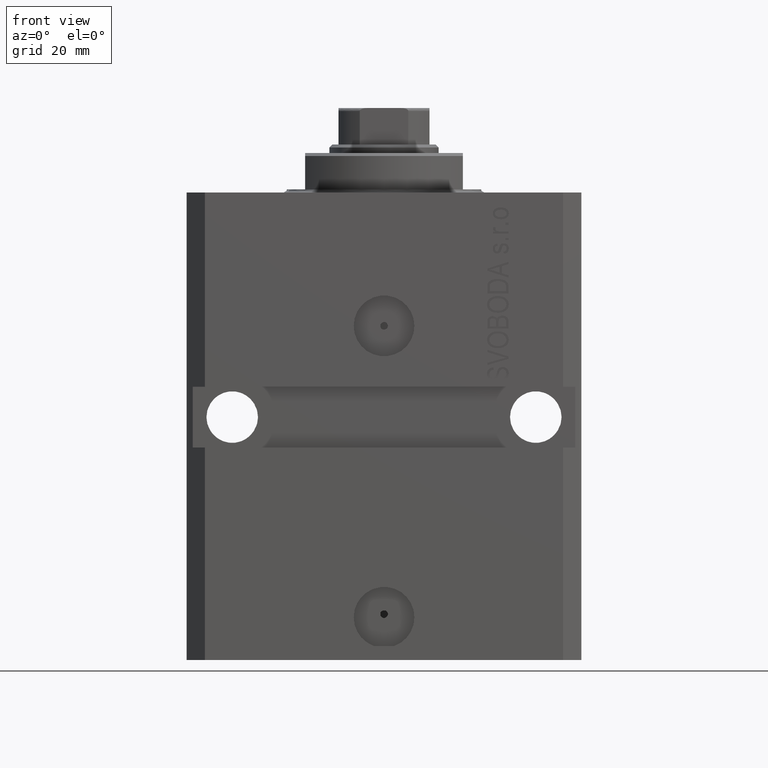
[diagram: clean part render]
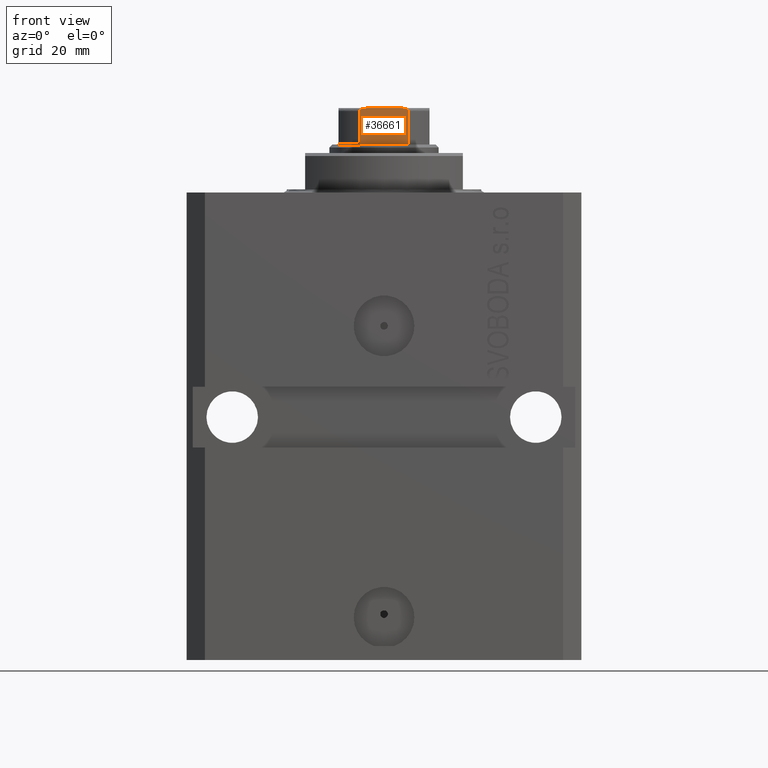
[diagram: same view with one face highlighted and labeled with its STEP entity id]
A machine part, front view. The second image highlights one B-rep face of the part: STEP entity #36661.
In plain terms, the highlighted planar face has unit normal (-0, 1, 0).
Its self-contained STEP definition (entity closure, byte-faithful):
#384 = CARTESIAN_POINT ( 'NONE',  ( -3.710689790367166285, -7.500000000000003553, 83.84812118173427109 ) ) ;
#1162 = LINE ( 'NONE', #28422, #32549 ) ;
#2265 = CARTESIAN_POINT ( 'NONE',  ( 4.000000000000000888, -7.500000000000000000, 83.49999999999997158 ) ) ;
#2795 = VECTOR ( 'NONE', #5708, 1000.000000000000000 ) ;
#4787 = DIRECTION ( 'NONE',  ( 1.000000000000000000, 5.782411586589358625E-17, 0.000000000000000000 ) ) ;
#5165 = EDGE_LOOP ( 'NONE', ( #26798, #14667, #33569, #21435, #6421, #19432 ) ) ;
#5605 = CARTESIAN_POINT ( 'NONE',  ( -2.783882181415010315, -7.500000000000000888, 84.00000000000000000 ) ) ;
#5708 = DIRECTION ( 'NONE',  ( -0.000000000000000000, -0.000000000000000000, 1.000000000000000000 ) ) ;
#6421 = ORIENTED_EDGE ( 'NONE', *, *, #21926, .T. ) ;
#8160 = VERTEX_POINT ( 'NONE', #23329 ) ;
#8560 = VERTEX_POINT ( 'NONE', #10737 ) ;
#8661 = LINE ( 'NONE', #32987, #2795 ) ;
#10586 = AXIS2_PLACEMENT_3D ( 'NONE', #30747, #27103, #13027 ) ;
#10737 = CARTESIAN_POINT ( 'NONE',  ( 2.783882181415008539, -7.500000000000000888, 84.00000000000000000 ) ) ;
#10833 = CARTESIAN_POINT ( 'NONE',  ( -3.975735230428955713, -7.500000000000000888, 83.61773041319776212 ) ) ;
#12227 = CARTESIAN_POINT ( 'NONE',  ( 3.858352854028576751, -7.500000000000001776, 83.75117951603156996 ) ) ;
#12564 = EDGE_CURVE ( 'NONE', #17273, #8560, #41448, .T. ) ;
#12680 = LINE ( 'NONE', #22688, #25627 ) ;
#13027 = DIRECTION ( 'NONE',  ( -1.000000000000000000, -5.782411586589358625E-17, 0.000000000000000000 ) ) ;
#13176 = CARTESIAN_POINT ( 'NONE',  ( -7.499999999999997335, -7.500000000000000888, 78.00000000000000000 ) ) ;
#14232 = CARTESIAN_POINT ( 'NONE',  ( -3.857502111569855785, -7.500000000000001776, 83.75173359969211617 ) ) ;
#14667 = ORIENTED_EDGE ( 'NONE', *, *, #23074, .T. ) ;
#15409 = CARTESIAN_POINT ( 'NONE',  ( 3.020011215871892585, -7.500000000000000888, 83.99999999999998579 ) ) ;
#16678 = VECTOR ( 'NONE', #30228, 1000.000000000000000 ) ;
#17094 = PLANE ( 'NONE',  #10586 ) ;
#17273 = VERTEX_POINT ( 'NONE', #2265 ) ;
#17685 = CARTESIAN_POINT ( 'NONE',  ( 4.000000000000000888, -7.500000000000000000, 77.99999999999998579 ) ) ;
#17782 = EDGE_CURVE ( 'NONE', #23168, #8560, #1162, .T. ) ;
#18125 = CARTESIAN_POINT ( 'NONE',  ( 2.783882181415008539, -7.500000000000000888, 84.00000000000000000 ) ) ;
#18825 = DIRECTION ( 'NONE',  ( -0.000000000000000000, -0.000000000000000000, 1.000000000000000000 ) ) ;
#19041 = CARTESIAN_POINT ( 'NONE',  ( 3.597188386589909470, -7.500000000000001776, 83.89052843393243108 ) ) ;
#19432 = ORIENTED_EDGE ( 'NONE', *, *, #12564, .T. ) ;
#21202 = B_SPLINE_CURVE_WITH_KNOTS ( 'NONE', 3,
 ( #39255, #29009, #36054, #28323, #384, #14232, #28099, #10833, #21272, #29926 ),
 .UNSPECIFIED., .F., .F.,
 ( 4, 2, 2, 2, 4 ),
 ( 4.336808689942017736E-19, 0.0007049202178654275690, 0.001057380326798146395, 0.001233610381264493936, 0.001409840435730841477 ),
 .UNSPECIFIED. ) ;
#21272 = CARTESIAN_POINT ( 'NONE',  ( -4.000000000000210498, -7.500000000000001776, 83.56034186205209835 ) ) ;
#21276 = VERTEX_POINT ( 'NONE', #17685 ) ;
#21435 = ORIENTED_EDGE ( 'NONE', *, *, #26327, .T. ) ;
#21926 = EDGE_CURVE ( 'NONE', #21276, #17273, #8661, .T. ) ;
#21987 = CARTESIAN_POINT ( 'NONE',  ( 3.904208668232345136, -7.500000000000000000, 83.71278134537496385 ) ) ;
#22688 = CARTESIAN_POINT ( 'NONE',  ( -4.000000000000000888, -7.500000000000000000, -0.001000000000001000089 ) ) ;
#23074 = EDGE_CURVE ( 'NONE', #23168, #8160, #21202, .T. ) ;
#23168 = VERTEX_POINT ( 'NONE', #5605 ) ;
#23188 = LINE ( 'NONE', #13176, #16678 ) ;
#23329 = CARTESIAN_POINT ( 'NONE',  ( -4.000000000000000888, -7.500000000000000000, 83.49999999999997158 ) ) ;
#23452 = CARTESIAN_POINT ( 'NONE',  ( 4.000000000000001776, -7.500000000000001776, 83.56026396800436373 ) ) ;
#24498 = CARTESIAN_POINT ( 'NONE',  ( -4.000000000000000888, -7.500000000000000000, 78.00000000000001421 ) ) ;
#25401 = CARTESIAN_POINT ( 'NONE',  ( 3.708875323752935937, -7.500000000000000888, 83.84930352055465619 ) ) ;
#25627 = VECTOR ( 'NONE', #18825, 1000.000000000000000 ) ;
#26327 = EDGE_CURVE ( 'NONE', #41081, #21276, #23188, .T. ) ;
#26798 = ORIENTED_EDGE ( 'NONE', *, *, #17782, .F. ) ;
#27103 = DIRECTION ( 'NONE',  ( -5.782411586589358625E-17, 1.000000000000000000, 0.000000000000000000 ) ) ;
#28099 = CARTESIAN_POINT ( 'NONE',  ( -3.904072061442365182, -7.500000000000002665, 83.71287056890807321 ) ) ;
#28323 = CARTESIAN_POINT ( 'NONE',  ( -3.598393151503795906, -7.500000000000000888, 83.89012191927410811 ) ) ;
#28422 = CARTESIAN_POINT ( 'NONE',  ( -7.499999999999997335, -7.500000000000000888, 84.00000000000000000 ) ) ;
#29009 = CARTESIAN_POINT ( 'NONE',  ( -3.020030562295406007, -7.500000000000000000, 83.99999999999998579 ) ) ;
#29926 = CARTESIAN_POINT ( 'NONE',  ( -4.000000000000000888, -7.500000000000000000, 83.49999999999997158 ) ) ;
#30228 = DIRECTION ( 'NONE',  ( 1.000000000000000000, 5.782411586589358625E-17, 0.000000000000000000 ) ) ;
#30747 = CARTESIAN_POINT ( 'NONE',  ( -7.499999999999997335, -7.500000000000000888, 84.00000000000000000 ) ) ;
#32549 = VECTOR ( 'NONE', #4787, 1000.000000000000000 ) ;
#32987 = CARTESIAN_POINT ( 'NONE',  ( 4.000000000000000888, -7.500000000000000000, -0.001000000000001000089 ) ) ;
#33569 = ORIENTED_EDGE ( 'NONE', *, *, #34918, .F. ) ;
#34918 = EDGE_CURVE ( 'NONE', #41081, #8160, #12680, .T. ) ;
#36054 = CARTESIAN_POINT ( 'NONE',  ( -3.255843148148216404, -7.500000000000000000, 83.98262378726870736 ) ) ;
#36661 = ADVANCED_FACE ( 'NONE', ( #44193 ), #17094, .F. ) ;
#37317 = CARTESIAN_POINT ( 'NONE',  ( 3.976018255615921149, -7.500000000000000000, 83.61726199300996143 ) ) ;
#39255 = CARTESIAN_POINT ( 'NONE',  ( -2.783882181415010315, -7.500000000000000888, 84.00000000000000000 ) ) ;
#41081 = VERTEX_POINT ( 'NONE', #24498 ) ;
#41448 = B_SPLINE_CURVE_WITH_KNOTS ( 'NONE', 3,
 ( #44159, #23452, #37317, #21987, #12227, #25401, #19041, #43155, #15409, #18125 ),
 .UNSPECIFIED., .F., .F.,
 ( 4, 2, 2, 2, 4 ),
 ( 2.823925224926892107E-17, 0.0001779688448869027099, 0.0003559376897737763631, 0.0007118753795475453536, 0.001423750759095083335 ),
 .UNSPECIFIED. ) ;
#43155 = CARTESIAN_POINT ( 'NONE',  ( 3.254991323038164630, -7.500000000000000000, 83.98269028443158390 ) ) ;
#44159 = CARTESIAN_POINT ( 'NONE',  ( 4.000000000000000888, -7.500000000000000000, 83.49999999999997158 ) ) ;
#44193 = FACE_OUTER_BOUND ( 'NONE', #5165, .T. ) ;